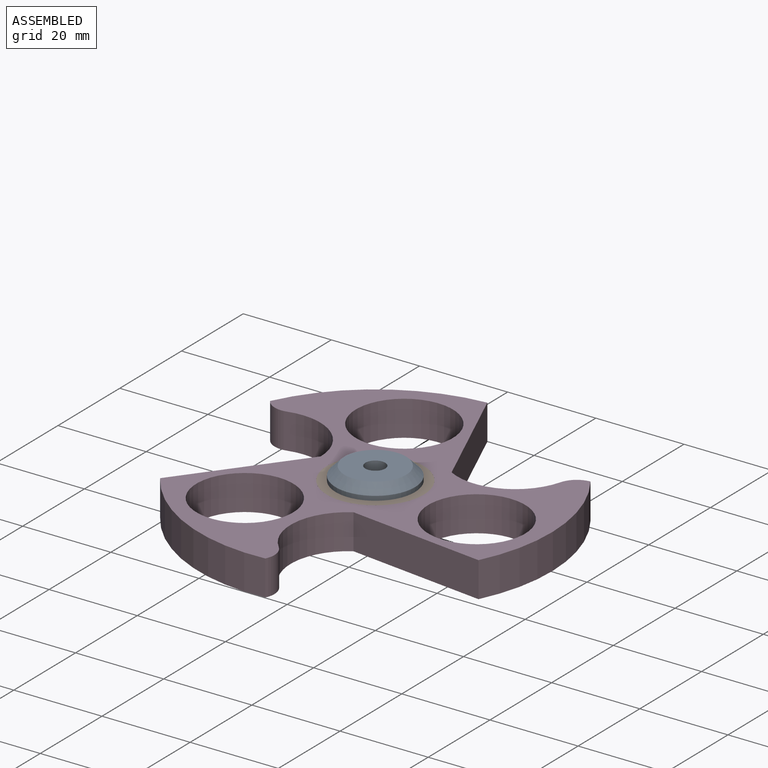
[diagram: assembled view]
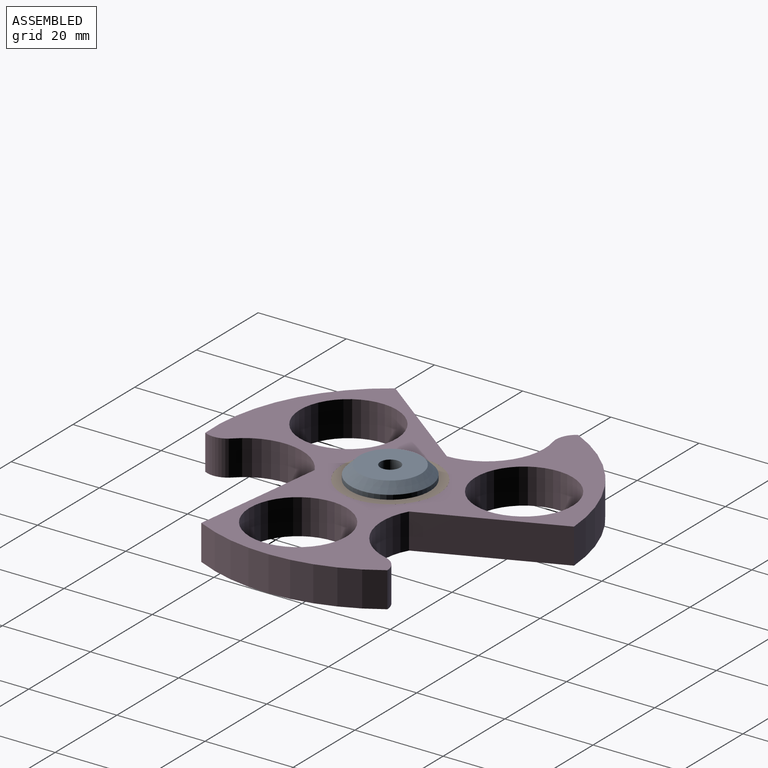
[diagram: assembled view, second angle]
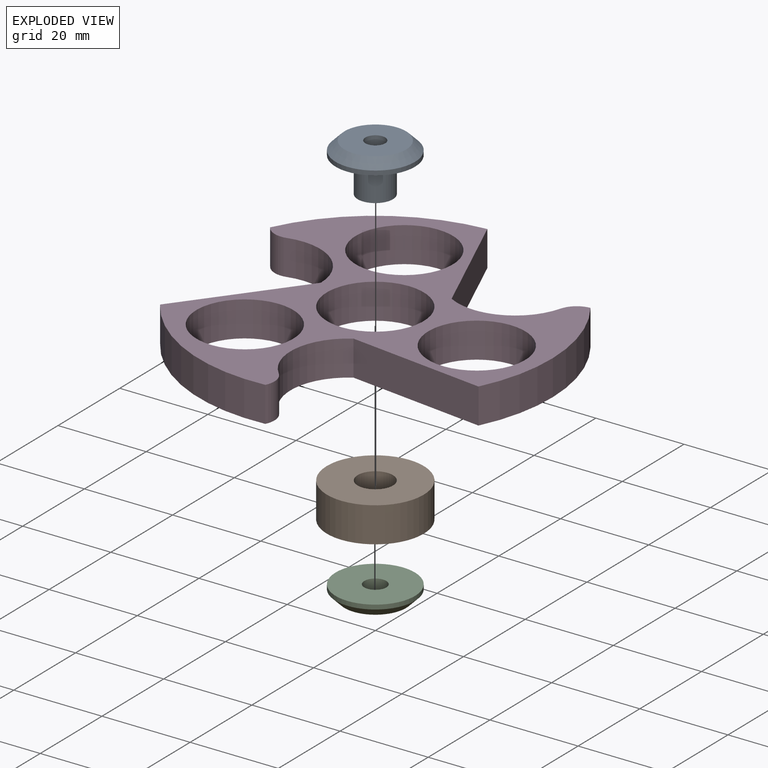
[diagram: exploded view]
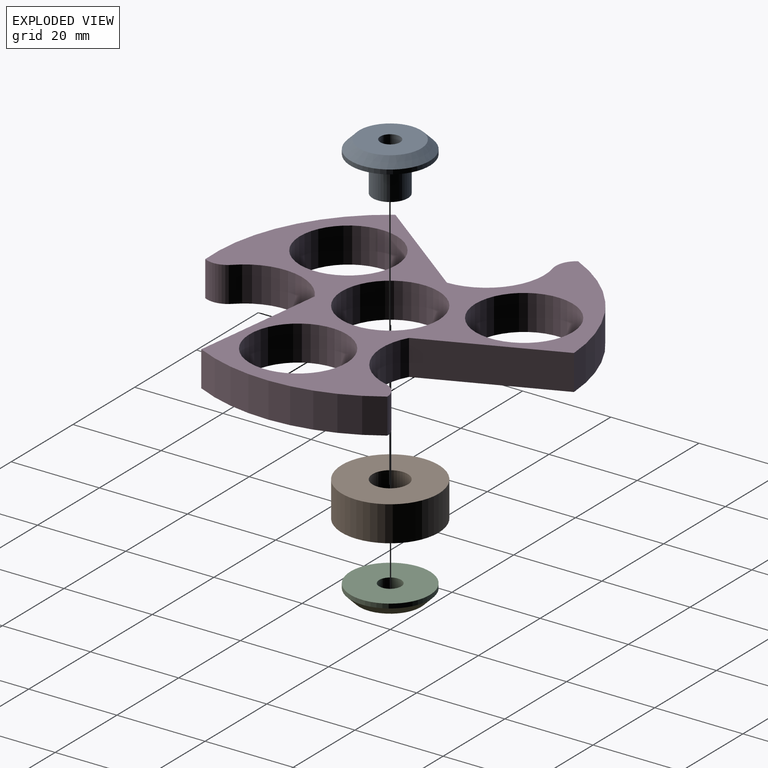
[diagram: exploded view, second angle]
ASSEMBLY  parts=4 mates=3
PART A: 7 faces, bbox 18x18x11 mm
  f0: cylinder r=9mm len=18mm, axis (0,0,-1), area 56.5mm2, adj f3,f6
  f1: cylinder r=2.25mm len=11mm, axis (0,0,-1), area 155.5mm2, adj f2,f4
  f2: plane 14x14mm, normal (0,0,1), area 138mm2, adj f1,f6
  f3: plane 18x18mm, normal (0,0,-1), area 204.2mm2, adj f0,f5
  f4: plane 8x8mm, normal (0,0,-1), area 34.4mm2, adj f1,f5
  f5: cylinder r=4mm len=8mm, axis (0,0,1), area 201.1mm2, adj f3,f4
  f6: cone r=7mm half-angle=45deg, axis (0,0,-1), area 142.2mm2, adj f0,f2
PART B: 4 faces, bbox 22x22x8 mm
  f0: cylinder r=4mm len=8mm, axis (0,0,-1), area 201.1mm2, adj f2,f3
  f1: cylinder r=11mm len=22mm, axis (0,0,-1), area 552.9mm2, adj f2,f3
  f2: plane 22x22mm, normal (0,0,1), area 329.9mm2, adj f0,f1
  f3: plane 22x22mm, normal (0,0,-1), area 329.9mm2, adj f0,f1
PART C: 5 faces, bbox 18x18x3 mm
  f0: cylinder r=9mm len=18mm, axis (0,0,1), area 56.5mm2, adj f3,f4
  f1: cylinder r=2.5mm len=5mm, axis (0,0,1), area 47.1mm2, adj f2,f3
  f2: plane 14x14mm, normal (0,0,-1), area 134.3mm2, adj f1,f4
  f3: plane 18x18mm, normal (0,0,1), area 234.8mm2, adj f0,f1
  f4: cone r=7mm half-angle=45deg, axis (0,0,1), area 142.2mm2, adj f0,f2
PART D: 18 faces, bbox 79.3x77.9x8 mm
  f0: cylinder r=40mm len=30.39mm, axis (0,0,-1), area 338.5mm2, adj f1,f15,f16,f17
  f1: cylinder r=4.78mm len=8mm, axis (0,0,-1), area 48.2mm2, adj f0,f2,f16,f17
  f2: cylinder r=13.14mm len=17.9mm, axis (0,0,-1), area 190.3mm2, adj f1,f3,f16,f17
  f3: plane 27.16x15.68mm, normal (-0.5,-0.87,0), area 250.9mm2, adj f2,f4,f16,f17
  f4: cylinder r=40mm len=38.21mm, axis (0,0,-1), area 338.5mm2, adj f3,f5,f16,f17
  f5: cylinder r=4.78mm len=8mm, axis (0,0,-1), area 48.2mm2, adj f4,f6,f16,f17
  f6: cylinder r=13.14mm len=20.67mm, axis (0,0,-1), area 190.3mm2, adj f5,f7,f16,f17
  f7: plane 31.37x8mm, normal (1,0,0), area 250.9mm2, adj f6,f8,f16,f17
  f8: cylinder r=40mm len=39.6mm, axis (0,0,-1), area 338.5mm2, adj f7,f9,f16,f17
  f9: cylinder r=4.78mm len=8mm, axis (0,0,-1), area 48.2mm2, adj f8,f10,f16,f17
  f10: cylinder r=13.14mm len=17.9mm, axis (0,0,-1), area 190.3mm2, adj f9,f15,f16,f17
  f11: cylinder r=11mm len=22mm, axis (0,0,-1), area 552.9mm2, adj f16,f17
  f12: cylinder r=11mm len=22mm, axis (0,0,-1), area 552.9mm2, adj f16,f17
  f13: cylinder r=11mm len=22mm, axis (0,0,-1), area 552.9mm2, adj f16,f17
  f14: cylinder r=11mm len=22mm, axis (0,0,-1), area 552.9mm2, adj f16,f17
  f15: plane 27.16x15.68mm, normal (-0.5,0.87,0), area 250.9mm2, adj f0,f10,f16,f17
  f16: plane 79.28x77.93mm, normal (0,0,1), area 1602.2mm2, adj f0,f1,f2,f3,f4,f5,f6,f7
  f17: plane 79.28x77.93mm, normal (0,0,-1), area 1602.2mm2, adj f0,f1,f2,f3,f4,f5,f6,f7
PLACE A t=(-27.66,-56.25,-8)mm
PLACE B t=(-27.66,-56.25,-8)mm
PLACE C t=(-27.66,-56.25,-8)mm
PLACE D rot(axis=(0,0,1),142.8deg) t=(56.05,28.05,-8)mm
MATE fastened B.f0 <-> C.f0  axis (0,0,-1) through (0,0,-8)mm
MATE revolute D.f0 <-> B.f0  axis (0,0,-1) through (0,0,-8)mm
MATE fastened B.f0 <-> A.f0  axis (0,0,-1) through (0,0,-4)mm
